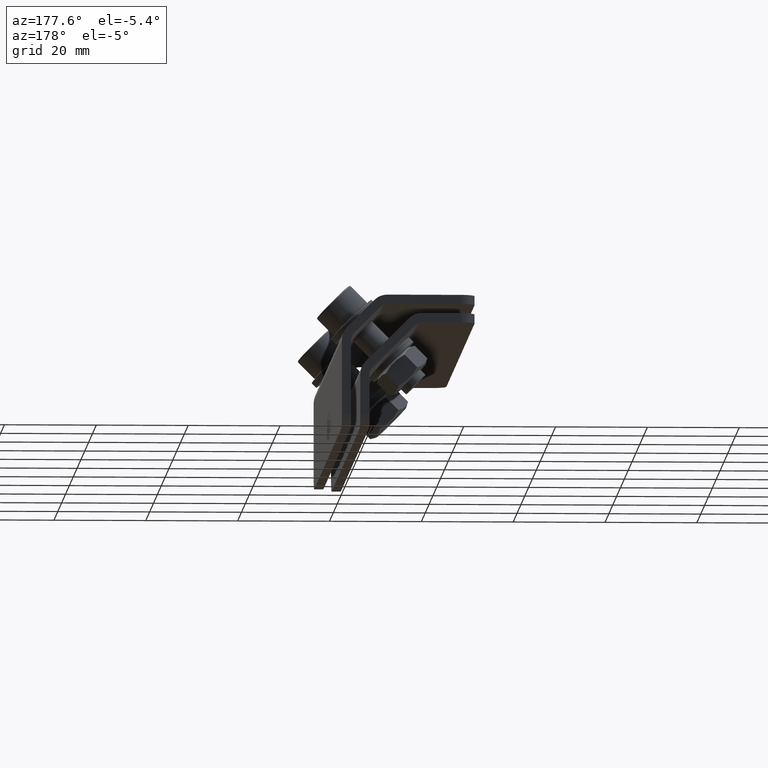
[diagram: clean part render]
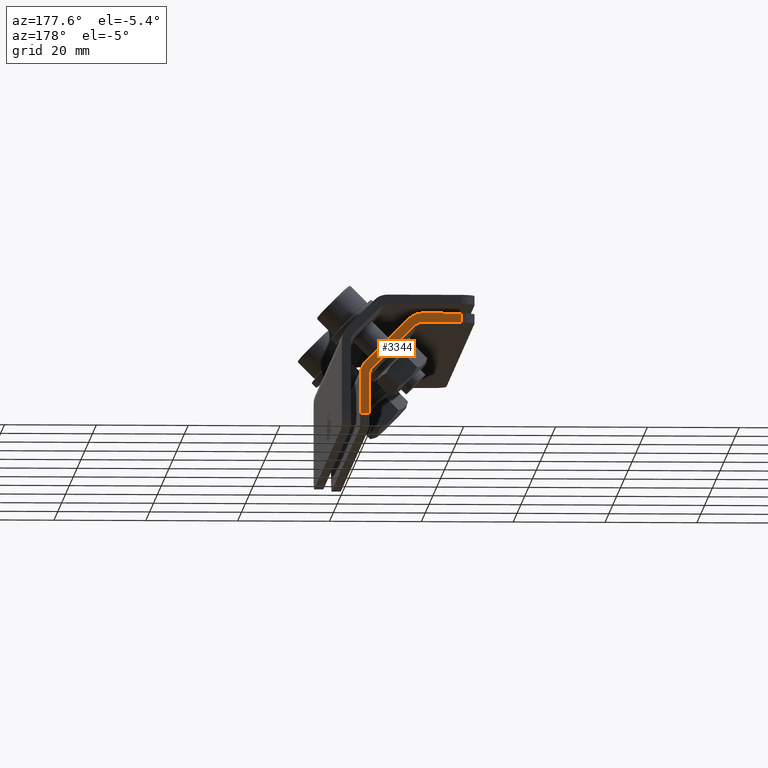
[diagram: same view with one face highlighted and labeled with its STEP entity id]
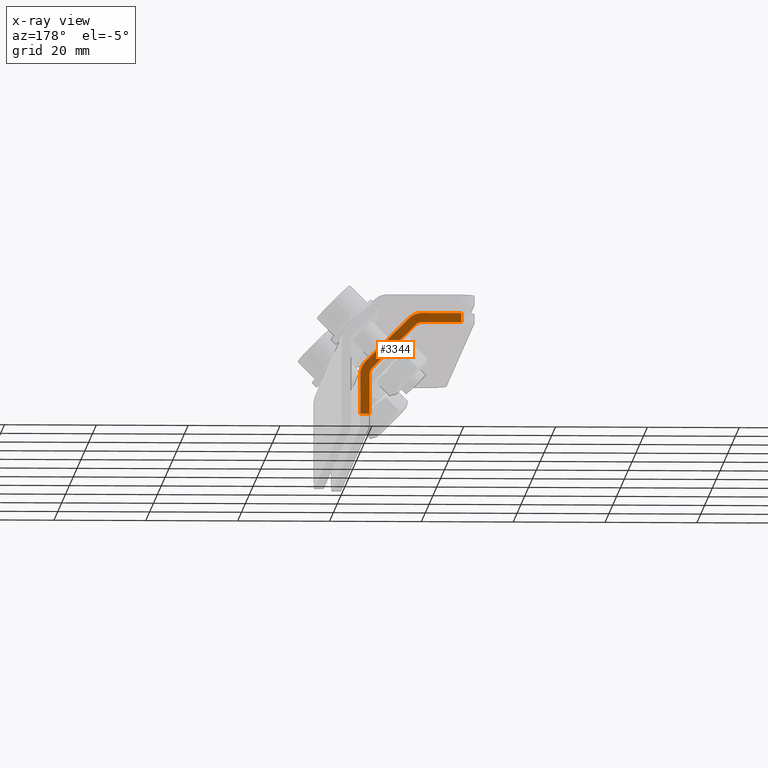
[diagram: x-ray of the same camera — body ghosted, the highlighted face saturated]
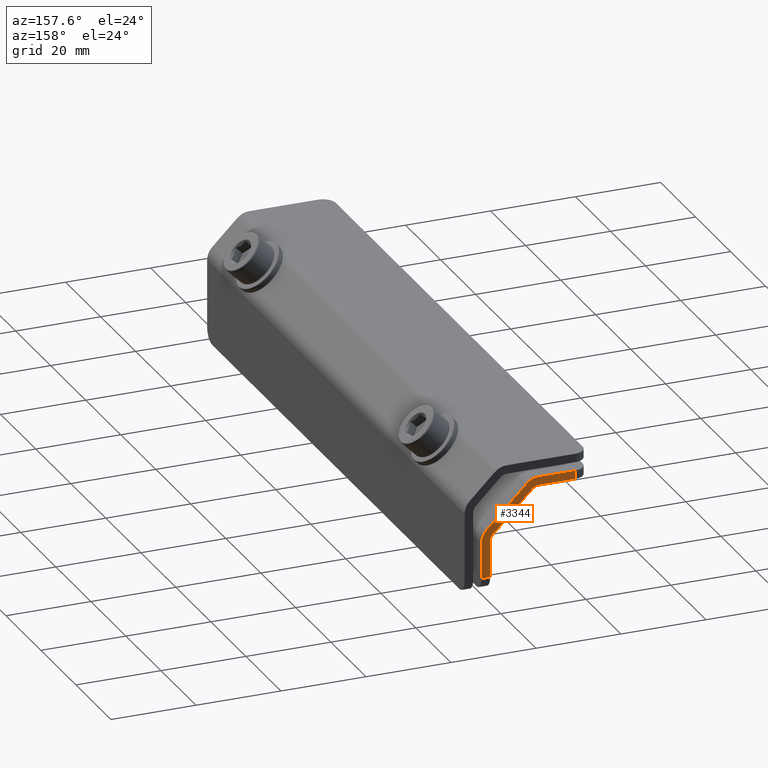
[diagram: same view with one face highlighted and labeled with its STEP entity id]
A machine part, auxiliary view. The second image highlights one B-rep face of the part: STEP entity #3344.
The next image is the same camera in x-ray: the body ghosted, the highlighted face saturated — about 0% of this face is hidden behind the body in this view.
A second angle (auxiliary view) of the same face is appended — the face is thin or edge-on in the first view.
In plain terms, the highlighted planar face has unit normal (-0, 1, 0).
Its self-contained STEP definition (entity closure, byte-faithful):
#1 = VECTOR ( 'NONE', #2845, 1000.000000000000000 ) ;
#18 = CARTESIAN_POINT ( 'NONE',  ( 7.917705587898865360, 72.28756298078290854, 164.5000000000000000 ) ) ;
#169 = LINE ( 'NONE', #3520, #2961 ) ;
#189 = CARTESIAN_POINT ( 'NONE',  ( -0.6472655695567326450, 72.28756298078290854, 151.0649711574556022 ) ) ;
#208 = EDGE_CURVE ( 'NONE', #3104, #2467, #1617, .T. ) ;
#280 = FACE_OUTER_BOUND ( 'NONE', #3567, .T. ) ;
#304 = CARTESIAN_POINT ( 'NONE',  ( 10.74613271264508718, 72.28756298078290854, 163.3284271247461845 ) ) ;
#322 = DIRECTION ( 'NONE',  ( -0.000000000000000000, 1.000000000000000000, 0.000000000000000000 ) ) ;
#384 = DIRECTION ( 'NONE',  ( -0.000000000000000000, -0.000000000000000000, -1.000000000000000000 ) ) ;
#398 = LINE ( 'NONE', #711, #1657 ) ;
#425 = CARTESIAN_POINT ( 'NONE',  ( 21.35273443044326314, 72.28756298078290854, 151.0649711574556022 ) ) ;
#462 = EDGE_CURVE ( 'NONE', #904, #2273, #169, .T. ) ;
#508 = VERTEX_POINT ( 'NONE', #425 ) ;
#520 = EDGE_CURVE ( 'NONE', #1959, #4169, #3191, .T. ) ;
#549 = ORIENTED_EDGE ( 'NONE', *, *, #520, .F. ) ;
#570 = VECTOR ( 'NONE', #4009, 1000.000000000000000 ) ;
#669 = PLANE ( 'NONE',  #3763 ) ;
#700 = AXIS2_PLACEMENT_3D ( 'NONE', #3404, #3102, #781 ) ;
#711 = CARTESIAN_POINT ( 'NONE',  ( 19.35273443044326669, 72.28756298078290854, 142.5000000000000284 ) ) ;
#732 = AXIS2_PLACEMENT_3D ( 'NONE', #3300, #4316, #4295 ) ;
#771 = CIRCLE ( 'NONE', #700, 4.000000000000003553 ) ;
#781 = DIRECTION ( 'NONE',  ( 5.204170427930416550E-15, 0.000000000000000000, -1.000000000000000000 ) ) ;
#904 = VERTEX_POINT ( 'NONE', #304 ) ;
#934 = CARTESIAN_POINT ( 'NONE',  ( 8.746132712645078300, 72.28756298078290854, 162.5000000000000000 ) ) ;
#962 = CARTESIAN_POINT ( 'NONE',  ( 21.35273443044327024, 72.28756298078290854, 153.8933982822017867 ) ) ;
#986 = EDGE_CURVE ( 'NONE', #2273, #508, #771, .T. ) ;
#989 = EDGE_CURVE ( 'NONE', #1044, #2467, #1205, .T. ) ;
#1010 = CARTESIAN_POINT ( 'NONE',  ( -0.6472655695567326450, 72.28756298078290854, 164.5000000000000000 ) ) ;
#1044 = VERTEX_POINT ( 'NONE', #4253 ) ;
#1054 = LINE ( 'NONE', #1832, #2079 ) ;
#1057 = DIRECTION ( 'NONE',  ( 0.000000000000000000, 0.000000000000000000, -1.000000000000000000 ) ) ;
#1060 = EDGE_CURVE ( 'NONE', #1044, #3790, #1467, .T. ) ;
#1205 = CIRCLE ( 'NONE', #3526, 2.000000000000001776 ) ;
#1290 = ORIENTED_EDGE ( 'NONE', *, *, #986, .T. ) ;
#1311 = ORIENTED_EDGE ( 'NONE', *, *, #1652, .T. ) ;
#1412 = VECTOR ( 'NONE', #4167, 1000.000000000000000 ) ;
#1467 = LINE ( 'NONE', #934, #1412 ) ;
#1475 = CARTESIAN_POINT ( 'NONE',  ( 17.35273443044326669, 72.28756298078290854, 151.0649711574556022 ) ) ;
#1537 = ORIENTED_EDGE ( 'NONE', *, *, #3654, .T. ) ;
#1565 = CARTESIAN_POINT ( 'NONE',  ( 19.35273443044326669, 72.28756298078290854, 151.0649711574556022 ) ) ;
#1617 = LINE ( 'NONE', #1641, #570 ) ;
#1641 = CARTESIAN_POINT ( 'NONE',  ( -3.647265569556731979, 72.28756298078290854, 162.5000000000000000 ) ) ;
#1652 = EDGE_CURVE ( 'NONE', #4058, #3790, #3152, .T. ) ;
#1653 = LINE ( 'NONE', #962, #1802 ) ;
#1657 = VECTOR ( 'NONE', #2085, 1000.000000000000000 ) ;
#1802 = VECTOR ( 'NONE', #2320, 1000.000000000000000 ) ;
#1806 = CARTESIAN_POINT ( 'NONE',  ( 7.917705587898879571, 72.28756298078290854, 160.5000000000000000 ) ) ;
#1832 = CARTESIAN_POINT ( 'NONE',  ( 19.35273443044326669, 72.28756298078290854, 151.8933982822017867 ) ) ;
#1959 = VERTEX_POINT ( 'NONE', #3637 ) ;
#2025 = AXIS2_PLACEMENT_3D ( 'NONE', #1475, #2119, #1057 ) ;
#2079 = VECTOR ( 'NONE', #384, 1000.000000000000000 ) ;
#2085 = DIRECTION ( 'NONE',  ( 1.000000000000000000, 0.000000000000000000, 0.000000000000000000 ) ) ;
#2108 = CARTESIAN_POINT ( 'NONE',  ( 21.35273443044327024, 72.28756298078290854, 142.5000000000000284 ) ) ;
#2119 = DIRECTION ( 'NONE',  ( -0.000000000000000000, -1.000000000000000000, -0.000000000000000000 ) ) ;
#2197 = ORIENTED_EDGE ( 'NONE', *, *, #989, .T. ) ;
#2220 = DIRECTION ( 'NONE',  ( 0.000000000000000000, 0.000000000000000000, -1.000000000000000000 ) ) ;
#2249 = ORIENTED_EDGE ( 'NONE', *, *, #208, .F. ) ;
#2273 = VERTEX_POINT ( 'NONE', #3192 ) ;
#2320 = DIRECTION ( 'NONE',  ( -0.000000000000000000, 0.000000000000000000, -1.000000000000000000 ) ) ;
#2404 = EDGE_CURVE ( 'NONE', #508, #2459, #1653, .T. ) ;
#2459 = VERTEX_POINT ( 'NONE', #2108 ) ;
#2467 = VERTEX_POINT ( 'NONE', #2771 ) ;
#2611 = CARTESIAN_POINT ( 'NONE',  ( 19.35273443044326669, 72.28756298078290854, 142.5000000000000284 ) ) ;
#2771 = CARTESIAN_POINT ( 'NONE',  ( 7.917705587898879571, 72.28756298078290854, 162.5000000000000000 ) ) ;
#2798 = CARTESIAN_POINT ( 'NONE',  ( 17.35273443044326669, 72.28756298078290854, 164.5000000000000000 ) ) ;
#2812 = ORIENTED_EDGE ( 'NONE', *, *, #2404, .T. ) ;
#2845 = DIRECTION ( 'NONE',  ( -1.000000000000000000, 0.000000000000000000, -0.000000000000000000 ) ) ;
#2961 = VECTOR ( 'NONE', #3170, 1000.000000000000114 ) ;
#2985 = ORIENTED_EDGE ( 'NONE', *, *, #1060, .F. ) ;
#3067 = EDGE_CURVE ( 'NONE', #4058, #3736, #1054, .T. ) ;
#3102 = DIRECTION ( 'NONE',  ( 0.000000000000000000, 1.000000000000000000, 0.000000000000000000 ) ) ;
#3104 = VERTEX_POINT ( 'NONE', #3744 ) ;
#3146 = DIRECTION ( 'NONE',  ( -0.000000000000000000, -1.000000000000000000, -0.000000000000000000 ) ) ;
#3152 = CIRCLE ( 'NONE', #2025, 2.000000000000001776 ) ;
#3170 = DIRECTION ( 'NONE',  ( 0.7071067811865460184, 0.000000000000000000, -0.7071067811865490160 ) ) ;
#3191 = LINE ( 'NONE', #2798, #1 ) ;
#3192 = CARTESIAN_POINT ( 'NONE',  ( 20.18116155518945831, 72.28756298078290854, 153.8933982822017867 ) ) ;
#3232 = LINE ( 'NONE', #189, #3701 ) ;
#3248 = CARTESIAN_POINT ( 'NONE',  ( 18.76694799281636250, 72.28756298078290854, 152.4791847198286803 ) ) ;
#3300 = CARTESIAN_POINT ( 'NONE',  ( 7.917705587898879571, 72.28756298078290854, 160.5000000000000000 ) ) ;
#3344 = ADVANCED_FACE ( 'NONE', ( #280 ), #669, .T. ) ;
#3404 = CARTESIAN_POINT ( 'NONE',  ( 17.35273443044326669, 72.28756298078290854, 151.0649711574556022 ) ) ;
#3520 = CARTESIAN_POINT ( 'NONE',  ( 10.74613271264508718, 72.28756298078290854, 163.3284271247461845 ) ) ;
#3526 = AXIS2_PLACEMENT_3D ( 'NONE', #1806, #3146, #4038 ) ;
#3547 = EDGE_CURVE ( 'NONE', #4169, #3104, #3232, .T. ) ;
#3567 = EDGE_LOOP ( 'NONE', ( #4330, #1290, #2812, #3585, #3629, #1311, #2985, #2197, #2249, #4196, #549, #1537 ) ) ;
#3585 = ORIENTED_EDGE ( 'NONE', *, *, #4247, .F. ) ;
#3629 = ORIENTED_EDGE ( 'NONE', *, *, #3067, .F. ) ;
#3637 = CARTESIAN_POINT ( 'NONE',  ( 7.917705587898879571, 72.28756298078290854, 164.5000000000000000 ) ) ;
#3654 = EDGE_CURVE ( 'NONE', #1959, #904, #4179, .T. ) ;
#3701 = VECTOR ( 'NONE', #2220, 1000.000000000000000 ) ;
#3736 = VERTEX_POINT ( 'NONE', #2611 ) ;
#3744 = CARTESIAN_POINT ( 'NONE',  ( -0.6472655695567326450, 72.28756298078290854, 162.5000000000000000 ) ) ;
#3763 = AXIS2_PLACEMENT_3D ( 'NONE', #18, #322, #3977 ) ;
#3790 = VERTEX_POINT ( 'NONE', #3248 ) ;
#3977 = DIRECTION ( 'NONE',  ( 0.000000000000000000, -0.000000000000000000, 1.000000000000000000 ) ) ;
#4009 = DIRECTION ( 'NONE',  ( 1.000000000000000000, -0.000000000000000000, 0.000000000000000000 ) ) ;
#4038 = DIRECTION ( 'NONE',  ( 0.000000000000000000, 0.000000000000000000, -1.000000000000000000 ) ) ;
#4058 = VERTEX_POINT ( 'NONE', #1565 ) ;
#4167 = DIRECTION ( 'NONE',  ( 0.7071067811865462405, -0.000000000000000000, -0.7071067811865489050 ) ) ;
#4169 = VERTEX_POINT ( 'NONE', #1010 ) ;
#4179 = CIRCLE ( 'NONE', #732, 4.000000000000003553 ) ;
#4196 = ORIENTED_EDGE ( 'NONE', *, *, #3547, .F. ) ;
#4247 = EDGE_CURVE ( 'NONE', #3736, #2459, #398, .T. ) ;
#4253 = CARTESIAN_POINT ( 'NONE',  ( 9.331919150271982488, 72.28756298078290854, 161.9142135623731065 ) ) ;
#4295 = DIRECTION ( 'NONE',  ( 3.469446951953611033E-15, 0.000000000000000000, -1.000000000000000000 ) ) ;
#4316 = DIRECTION ( 'NONE',  ( 0.000000000000000000, 1.000000000000000000, 0.000000000000000000 ) ) ;
#4330 = ORIENTED_EDGE ( 'NONE', *, *, #462, .T. ) ;